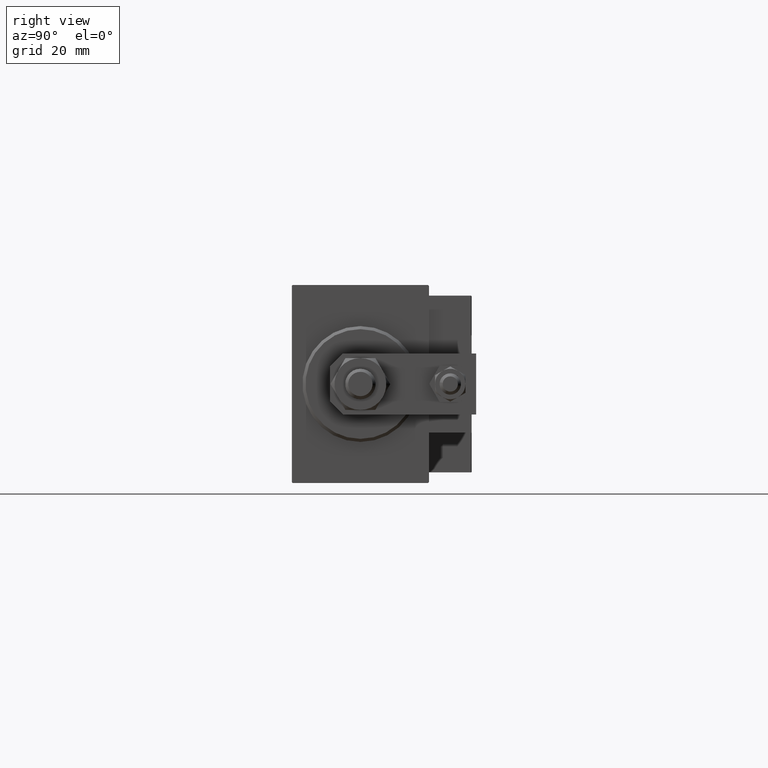
[diagram: clean part render]
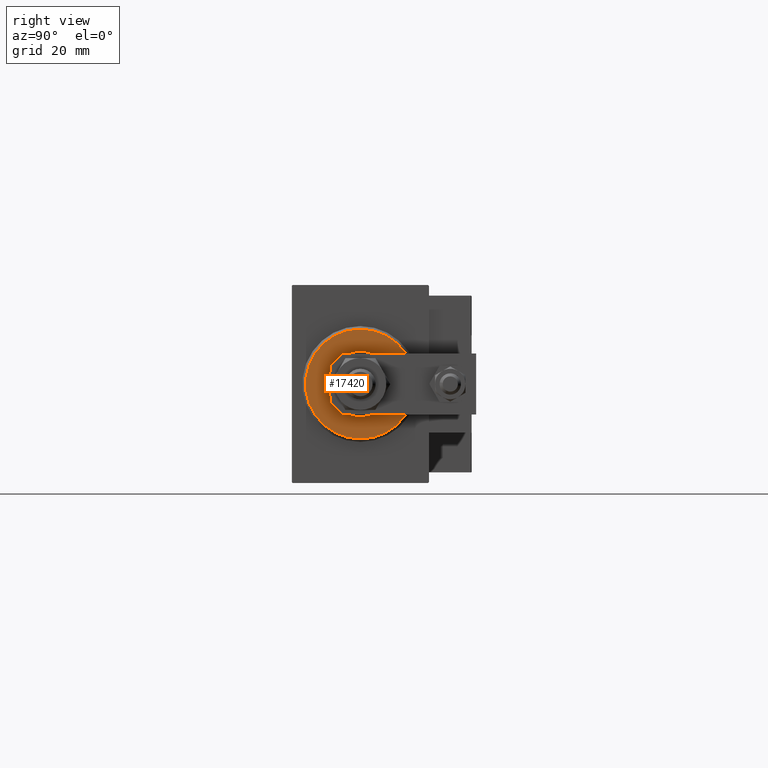
[diagram: same view with one face highlighted and labeled with its STEP entity id]
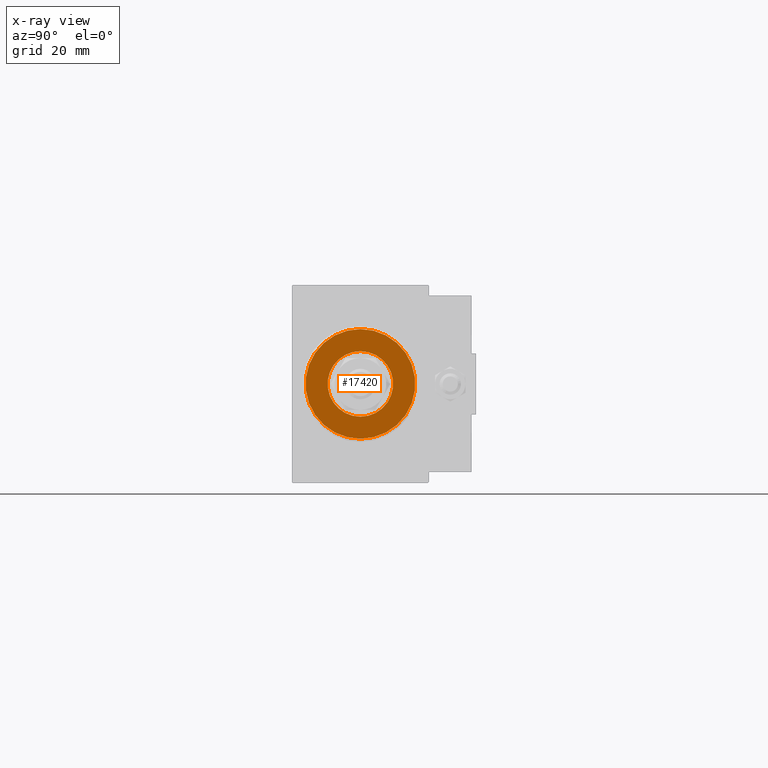
[diagram: x-ray of the same camera — body ghosted, the highlighted face saturated]
A machine part, right view. The second image highlights one B-rep face of the part: STEP entity #17420.
The next image is the same camera in x-ray: the body ghosted, the highlighted face saturated — about 0% of this face is hidden behind the body in this view.
In plain terms, the highlighted planar face has unit normal (1, 0, 0).
Its self-contained STEP definition (entity closure, byte-faithful):
#1537 = CARTESIAN_POINT ( 'NONE',  ( 3.000000000000000000, 2.265596578422603002E-15, -17.99999999999999645 ) ) ;
#2018 = PLANE ( 'NONE',  #43005 ) ;
#4521 = DIRECTION ( 'NONE',  ( 0.000000000000000000, 0.000000000000000000, -1.000000000000000000 ) ) ;
#5437 = CARTESIAN_POINT ( 'NONE',  ( 3.000000000000000000, 0.000000000000000000, 0.000000000000000000 ) ) ;
#8519 = AXIS2_PLACEMENT_3D ( 'NONE', #14477, #30461, #46411 ) ;
#10586 = ORIENTED_EDGE ( 'NONE', *, *, #43285, .T. ) ;
#10839 = CARTESIAN_POINT ( 'NONE',  ( 3.000000000000000000, 1.316495309083404223E-15, -10.75000000000000000 ) ) ;
#11264 = EDGE_CURVE ( 'NONE', #15816, #48666, #51119, .T. ) ;
#11576 = DIRECTION ( 'NONE',  ( 0.000000000000000000, 0.000000000000000000, -1.000000000000000000 ) ) ;
#12009 = CIRCLE ( 'NONE', #23709, 17.99999999999999645 ) ;
#14477 = CARTESIAN_POINT ( 'NONE',  ( 3.000000000000000000, 0.000000000000000000, 0.000000000000000000 ) ) ;
#15816 = VERTEX_POINT ( 'NONE', #10839 ) ;
#16712 = AXIS2_PLACEMENT_3D ( 'NONE', #46945, #50348, #11576 ) ;
#17420 = ADVANCED_FACE ( 'NONE', ( #41805, #18243 ), #2018, .T. ) ;
#17876 = ORIENTED_EDGE ( 'NONE', *, *, #51281, .T. ) ;
#18000 = DIRECTION ( 'NONE',  ( 0.000000000000000000, 0.000000000000000000, -1.000000000000000000 ) ) ;
#18243 = FACE_BOUND ( 'NONE', #49449, .T. ) ;
#18791 = ORIENTED_EDGE ( 'NONE', *, *, #32335, .T. ) ;
#20080 = CIRCLE ( 'NONE', #16712, 10.75000000000000000 ) ;
#21947 = DIRECTION ( 'NONE',  ( 0.000000000000000000, 0.000000000000000000, -1.000000000000000000 ) ) ;
#22370 = CIRCLE ( 'NONE', #26550, 17.99999999999999645 ) ;
#22720 = DIRECTION ( 'NONE',  ( 1.000000000000000000, -0.000000000000000000, 0.000000000000000000 ) ) ;
#23709 = AXIS2_PLACEMENT_3D ( 'NONE', #24686, #40367, #4521 ) ;
#24686 = CARTESIAN_POINT ( 'NONE',  ( 3.000000000000000000, 0.000000000000000000, 0.000000000000000000 ) ) ;
#26550 = AXIS2_PLACEMENT_3D ( 'NONE', #46526, #22720, #21947 ) ;
#30461 = DIRECTION ( 'NONE',  ( -1.000000000000000000, 0.000000000000000000, -0.000000000000000000 ) ) ;
#32335 = EDGE_CURVE ( 'NONE', #48666, #15816, #20080, .T. ) ;
#32833 = CARTESIAN_POINT ( 'NONE',  ( 3.000000000000000000, 0.000000000000000000, 10.75000000000000000 ) ) ;
#33115 = ORIENTED_EDGE ( 'NONE', *, *, #11264, .T. ) ;
#35120 = EDGE_LOOP ( 'NONE', ( #17876, #10586 ) ) ;
#39326 = VERTEX_POINT ( 'NONE', #1537 ) ;
#40367 = DIRECTION ( 'NONE',  ( 1.000000000000000000, -0.000000000000000000, 0.000000000000000000 ) ) ;
#41721 = CARTESIAN_POINT ( 'NONE',  ( 3.000000000000000000, 0.000000000000000000, 17.99999999999999645 ) ) ;
#41805 = FACE_OUTER_BOUND ( 'NONE', #35120, .T. ) ;
#43005 = AXIS2_PLACEMENT_3D ( 'NONE', #5437, #49418, #18000 ) ;
#43068 = VERTEX_POINT ( 'NONE', #41721 ) ;
#43285 = EDGE_CURVE ( 'NONE', #39326, #43068, #12009, .T. ) ;
#46411 = DIRECTION ( 'NONE',  ( 0.000000000000000000, 0.000000000000000000, -1.000000000000000000 ) ) ;
#46526 = CARTESIAN_POINT ( 'NONE',  ( 3.000000000000000000, 0.000000000000000000, 0.000000000000000000 ) ) ;
#46945 = CARTESIAN_POINT ( 'NONE',  ( 3.000000000000000000, 0.000000000000000000, 0.000000000000000000 ) ) ;
#48666 = VERTEX_POINT ( 'NONE', #32833 ) ;
#49418 = DIRECTION ( 'NONE',  ( 1.000000000000000000, -0.000000000000000000, 0.000000000000000000 ) ) ;
#49449 = EDGE_LOOP ( 'NONE', ( #18791, #33115 ) ) ;
#50348 = DIRECTION ( 'NONE',  ( -1.000000000000000000, 0.000000000000000000, -0.000000000000000000 ) ) ;
#51119 = CIRCLE ( 'NONE', #8519, 10.75000000000000000 ) ;
#51281 = EDGE_CURVE ( 'NONE', #43068, #39326, #22370, .T. ) ;